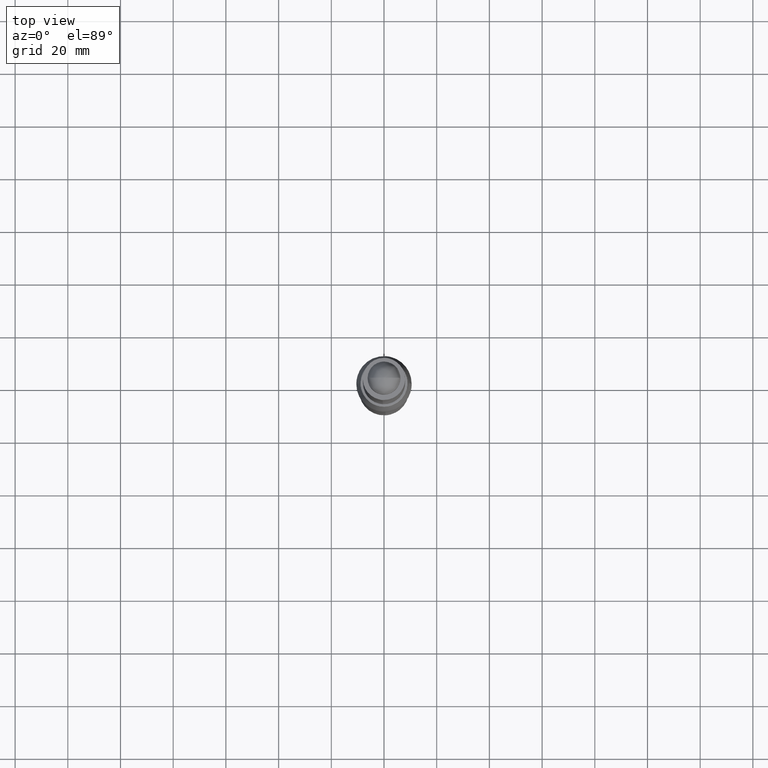
[diagram: clean part render]
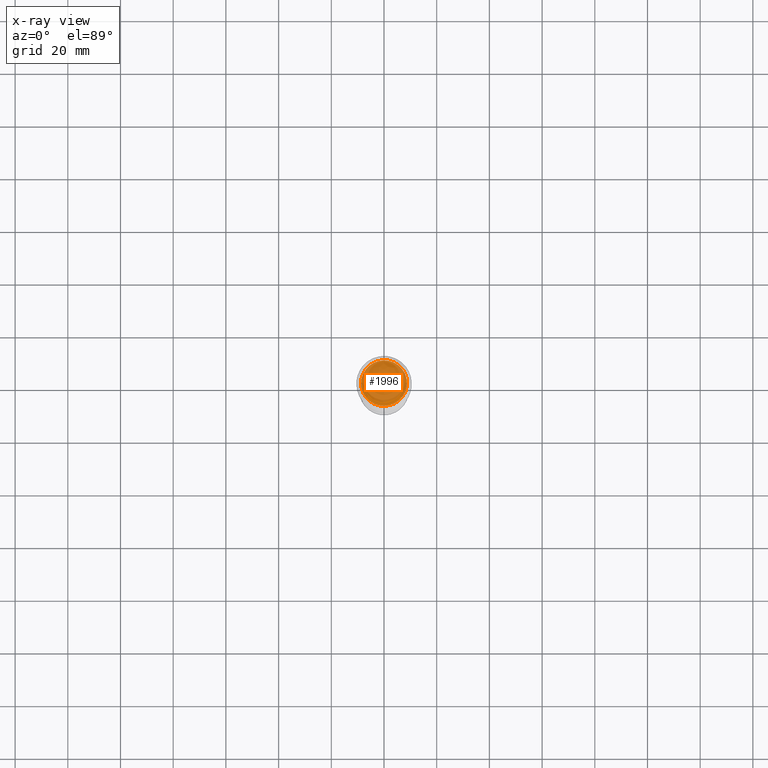
[diagram: x-ray — body ghosted, one internal face saturated and labeled with its STEP entity id]
A machine part, top view, then the same camera in x-ray: the body is ghosted and one INTERNAL B-rep face — a face not visible from any outside direction — is saturated and labeled: STEP entity #1996.
In plain terms, the highlighted face is a freeform B-spline surface patch.
Its self-contained STEP definition (entity closure, byte-faithful):
#1945=CARTESIAN_POINT('',(9.568374429655735,-9.508396300909652,0.0));
#1946=CARTESIAN_POINT('',(-9.568374901518345,-9.508396300909652,0.0));
#1947=CARTESIAN_POINT('',(9.568374429655735,9.508396610005878,0.0));
#1948=CARTESIAN_POINT('',(-9.568374901518345,9.508396610005878,0.0));
#1949=B_SPLINE_SURFACE_WITH_KNOTS('',1,1,((#1945,#1947),(#1946,#1948)),.UNSPECIFIED.,.F.,.F.,.U.,(2,2),(2,2),(0.0,19.136749331174080),(0.0,19.016792910915530),.UNSPECIFIED.);
#1950=CARTESIAN_POINT('',(-8.699313091037579,-0.109324547066404,-3.765922E-016));
#1951=VERTEX_POINT('',#1950);
#1952=CARTESIAN_POINT('',(8.699313085842489,0.109324547001120,-1.834180E-016));
#1953=VERTEX_POINT('',#1952);
#1954=CARTESIAN_POINT('',(-8.699313091037579,-0.109324547066404,-3.765922E-016));
#1955=CARTESIAN_POINT('',(-8.687609456280850,-1.101805360773781,-3.765315E-016));
#1956=CARTESIAN_POINT('',(-8.403786239167138,-2.622172022911877,-3.734865E-016));
#1957=CARTESIAN_POINT('',(-7.385812055984300,-4.739801495827394,-3.623327E-016));
#1958=CARTESIAN_POINT('',(-6.234367932378305,-6.156901181618866,-3.496483E-016));
#1959=CARTESIAN_POINT('',(-4.696671348758859,-7.365751680624747,-3.326612E-016));
#1960=CARTESIAN_POINT('',(-3.295924782840649,-8.075551659269969,-3.171596E-016));
#1961=CARTESIAN_POINT('',(-1.689654261204359,-8.534417122802989,-2.993589E-016));
#1962=CARTESIAN_POINT('',(0.222798567637047,-8.739506482047981,-2.781412E-016));
#1963=CARTESIAN_POINT('',(2.316445566119807,-8.422550541371820,-2.548755E-016));
#1964=CARTESIAN_POINT('',(4.243248755614676,-7.581085411337357,-2.334255E-016));
#1965=CARTESIAN_POINT('',(5.613647325668570,-6.619985841678014,-2.181443E-016));
#1966=CARTESIAN_POINT('',(6.811602284354302,-5.403097826068096,-2.047598E-016));
#1967=CARTESIAN_POINT('',(7.656744501552677,-4.123771198386876,-1.952878E-016));
#1968=CARTESIAN_POINT('',(8.460213253904463,-2.264985573112732,-1.862381E-016));
#1969=CARTESIAN_POINT('',(8.700027695763463,-0.883302152116360,-1.834793E-016));
#1970=CARTESIAN_POINT('',(8.699313085842489,0.109324547001120,-1.834180E-016));
#1971=B_SPLINE_CURVE_WITH_KNOTS('',3,(#1954,#1955,#1956,#1957,#1958,#1959,#1960,#1961,#1962,#1963,#1964,#1965,#1966,#1967,#1968,#1969,#1970),.UNSPECIFIED.,.F.,.U.,(4,1,1,1,1,1,1,1,1,1,1,1,1,1,4),(0.000001333750117,2.977425521685682,4.572550787413835,7.018421731523521,8.400880725280956,10.421322587912490,11.697470061354940,13.398898984178240,16.163512137014280,17.971303329461989,19.672783984633341,21.161570133064000,23.075740784864571,24.245501908817090,27.222900435568100),.UNSPECIFIED.);
#1972=EDGE_CURVE('',#1951,#1953,#1971,.T.);
#1973=ORIENTED_EDGE('',*,*,#1972,.T.);
#1974=CARTESIAN_POINT('',(8.699313085842489,0.109324547001120,-1.834180E-016));
#1975=CARTESIAN_POINT('',(8.686969176776767,1.172727624273479,-1.834808E-016));
#1976=CARTESIAN_POINT('',(8.355467459028580,2.834168852970112,-1.870452E-016));
#1977=CARTESIAN_POINT('',(7.424563569573841,4.599751637907862,-1.972569E-016));
#1978=CARTESIAN_POINT('',(6.527699952455138,5.790945633014208,-2.071308E-016));
#1979=CARTESIAN_POINT('',(5.454966950792160,6.833660284089635,-2.189675E-016));
#1980=CARTESIAN_POINT('',(3.712023052552241,7.945497355017555,-2.382401E-016));
#1981=CARTESIAN_POINT('',(1.867016508892369,8.534314820213425,-2.586822E-016));
#1982=CARTESIAN_POINT('',(0.024983166336707,8.685481320575747,-2.791218E-016));
#1983=CARTESIAN_POINT('',(-1.713205121200273,8.541206751255496,-2.984292E-016));
#1984=CARTESIAN_POINT('',(-3.587398966939392,7.944255461397811,-3.192781E-016));
#1985=CARTESIAN_POINT('',(-5.167001250957139,6.973190369094748,-3.368825E-016));
#1986=CARTESIAN_POINT('',(-6.593888921659258,5.689638569940155,-3.528133E-016));
#1987=CARTESIAN_POINT('',(-7.759775641049890,4.057174257542926,-3.658708E-016));
#1988=CARTESIAN_POINT('',(-8.538063712295910,1.946407079247091,-3.746586E-016));
#1989=CARTESIAN_POINT('',(-8.699437499231500,0.564130444730249,-3.765466E-016));
#1990=CARTESIAN_POINT('',(-8.699313091037579,-0.109324547066404,-3.765922E-016));
#1991=B_SPLINE_CURVE_WITH_KNOTS('',3,(#1974,#1975,#1976,#1977,#1978,#1979,#1980,#1981,#1982,#1983,#1984,#1985,#1986,#1987,#1988,#1989,#1990),.UNSPECIFIED.,.F.,.U.,(4,1,1,1,1,1,1,1,1,1,1,1,1,1,4),(0.000001333781832,3.190095615950849,4.997907209363635,5.954999537673743,7.656471283373048,9.464246193418294,12.122716490419670,13.398898984194600,14.993823454261941,17.333289177854539,19.247408286886259,20.523518743690840,23.075740784869598,25.202562093117191,27.222900435567968),.UNSPECIFIED.);
#1992=EDGE_CURVE('',#1953,#1951,#1991,.T.);
#1993=ORIENTED_EDGE('',*,*,#1992,.T.);
#1994=EDGE_LOOP('',(#1973,#1993));
#1995=FACE_OUTER_BOUND('',#1994,.T.);
#1996=ADVANCED_FACE('',(#1995),#1949,.F.);